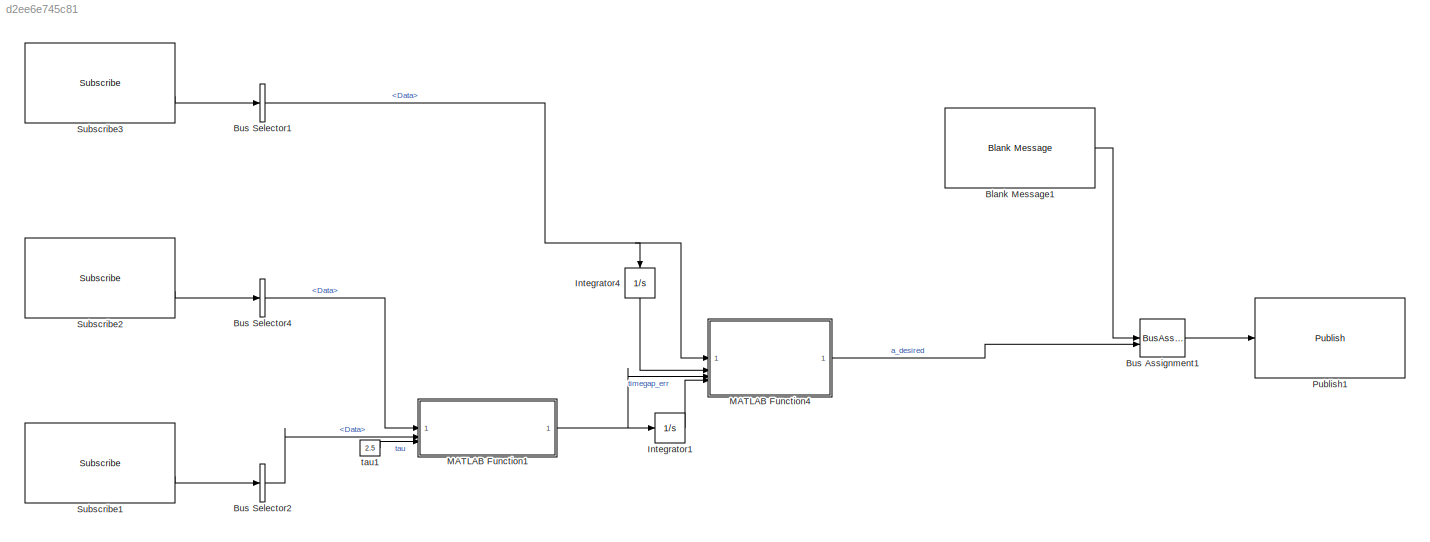
MODEL slx_d2ee6e745c81
KIND model
CONFIG AbsTol = auto
CONFIG EnableMultiTasking = off
CONFIG FixedStep = auto
CONFIG MaxStep = auto
CONFIG MinStep = auto
CONFIG RelTol = 1e-3
CONFIG SampleTimeConstraint = Unconstrained
CONFIG SolverName = FixedStepAuto
CONFIG StartTime = 0.0
CONFIG StopTime = inf
BLOCK [Reference] Blank Message1  REF=robotlib/Blank Message
  SourceBlock = robotlib/Blank Message
  SourceType = ROS Blank Message
BLOCK [BusAssignment] Bus Assignment1
  AssignedSignals = Data
BLOCK [BusSelector] Bus Selector1
  OutputSignals = Data
BLOCK [BusSelector] Bus Selector2
  OutputSignals = Data
BLOCK [BusSelector] Bus Selector4
  OutputSignals = Data
BLOCK [Integrator] Integrator1
BLOCK [Integrator] Integrator4
  NameLocation = left
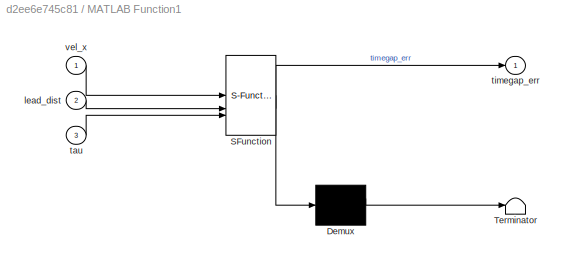
BLOCK [SubSystem] MATLAB Function1
  ErrorFcn = Stateflow.Translate.translate
  PermitHierarchicalResolution = ExplicitOnly
  SFBlockType = MATLAB Function
  TreatAsAtomicUnit = on
BLOCK [Demux] MATLAB Function1/ Demux 
  Outputs = 1
BLOCK [S-Function] MATLAB Function1/ SFunction 
  EnableBusSupport = on
  FunctionName = sf_sfun
  PortCounts = [3 2]
  SFcnIsStateOwnerBlock = off
  SFunctionDeploymentMode = off
  Tag = Stateflow S-Function 1
BLOCK [Terminator] MATLAB Function1/ Terminator 
BLOCK [Inport] MATLAB Function1/lead_dist
  Port = 2
BLOCK [Inport] MATLAB Function1/tau
  Port = 3
BLOCK [Outport] MATLAB Function1/timegap_err
BLOCK [Inport] MATLAB Function1/vel_x
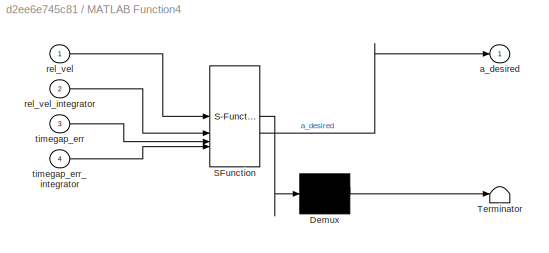
BLOCK [SubSystem] MATLAB Function4
  ErrorFcn = Stateflow.Translate.translate
  PermitHierarchicalResolution = ExplicitOnly
  SFBlockType = MATLAB Function
  TreatAsAtomicUnit = on
BLOCK [Demux] MATLAB Function4/ Demux 
  Outputs = 1
BLOCK [S-Function] MATLAB Function4/ SFunction 
  EnableBusSupport = on
  FunctionName = sf_sfun
  PortCounts = [4 2]
  SFcnIsStateOwnerBlock = off
  SFunctionDeploymentMode = off
  Tag = Stateflow S-Function 4
BLOCK [Terminator] MATLAB Function4/ Terminator 
BLOCK [Outport] MATLAB Function4/a_desired
BLOCK [Inport] MATLAB Function4/rel_vel
BLOCK [Inport] MATLAB Function4/rel_vel_integrator
  Port = 2
BLOCK [Inport] MATLAB Function4/timegap_err
  Port = 3
BLOCK [Inport] MATLAB Function4/timegap_err_integrator
  Port = 4
BLOCK [Reference] Publish1  REF=robotlib/Publish
  SourceBlock = robotlib/Publish
  SourceType = ROS Publish
BLOCK [Reference] Subscribe1  REF=robotlib/Subscribe
  SourceBlock = robotlib/Subscribe
  SourceType = ROS Subscribe
BLOCK [Reference] Subscribe2  REF=robotlib/Subscribe
  SourceBlock = robotlib/Subscribe
  SourceType = ROS Subscribe
BLOCK [Reference] Subscribe3  REF=robotlib/Subscribe
  SourceBlock = robotlib/Subscribe
  SourceType = ROS Subscribe
BLOCK [Constant] tau1
  Value = 2.5
LINE Blank Message1:1 -> Bus Assignment1:1
LINE Bus Assignment1:1 -> Publish1:1
NET Bus Selector1:1 -> Integrator4:1, MATLAB Function4:1
LINE Bus Selector2:1 -> MATLAB Function1:2
LINE Bus Selector4:1 -> MATLAB Function1:1
LINE Integrator1:1 -> MATLAB Function4:4
LINE Integrator4:1 -> MATLAB Function4:2
NET MATLAB Function1:1 -> Integrator1:1, MATLAB Function4:3
LINE MATLAB Function4:1 -> Bus Assignment1:2
LINE Subscribe1:2 -> Bus Selector2:1
LINE Subscribe2:2 -> Bus Selector4:1
LINE Subscribe3:2 -> Bus Selector1:1
LINE tau1:1 -> MATLAB Function1:3
note: NET lines group one-source signal fan-out (src -> all destinations, sorted); 1:1 wires keep LINE
CHART MATLAB Function1 states=1 transitions=1
  STATE_LABEL 'eML_blk_kernel()'
  STATE_LABEL 'SCRIPT:\nfunction timegap_err = fcn(vel_x, lead_dist, tau)\n\ntimegap_err = (lead_dist-1)/tau - vel_x; % keep at least 1 meter as safety distance even if both vehicles stop'
CHART MATLAB Function4 states=1 transitions=1
  STATE_LABEL 'eML_blk_kernel()'
  STATE_LABEL 'SCRIPT:\nfunction a_desired = fcn(rel_vel, rel_vel_integrator, timegap_err, timegap_err_integrator)\n%delt_tau = 0.5;\n%tau_max = tau+delt_tau;\n%tau_min = tau-delt_tau;\n%time_gap = lead_dist/vel_x;\n\n%if time_gap<tau_max && time_gap>tau_min && rel_vel<2\n%    ratio = abs(time_gap-timegap_err)/delt_tau;\n%    a=a*(exp(ratio)-1)/(exp(1)-1);\n%end\n\nalpha1 = 0.8\nalpha2 = .5\n\na = alpha1*rel_vel + alpha2*timeg...<+208ch>'
CHART  states=0 transitions=0
CHART  states=0 transitions=0
